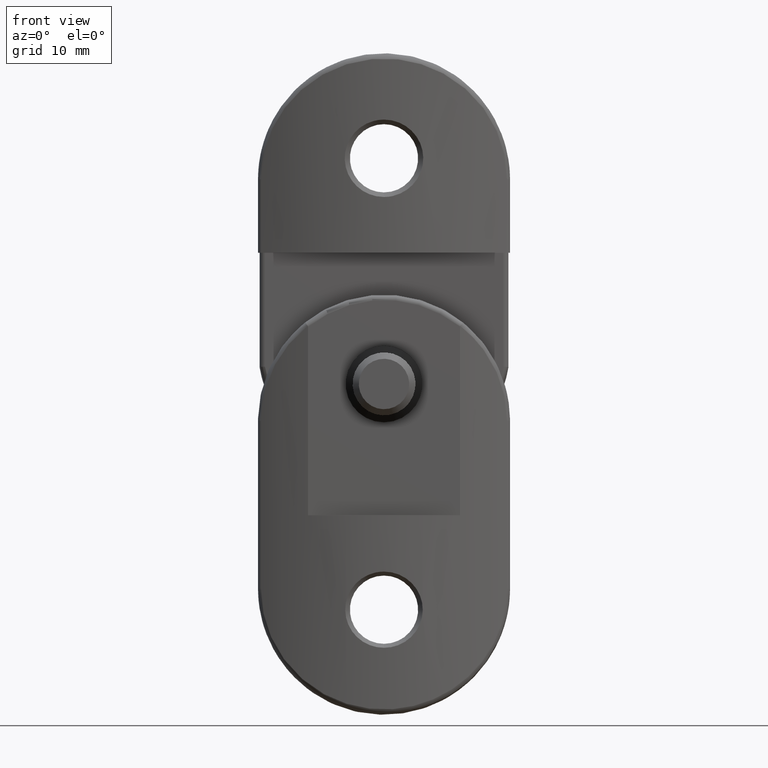
[diagram: clean part render]
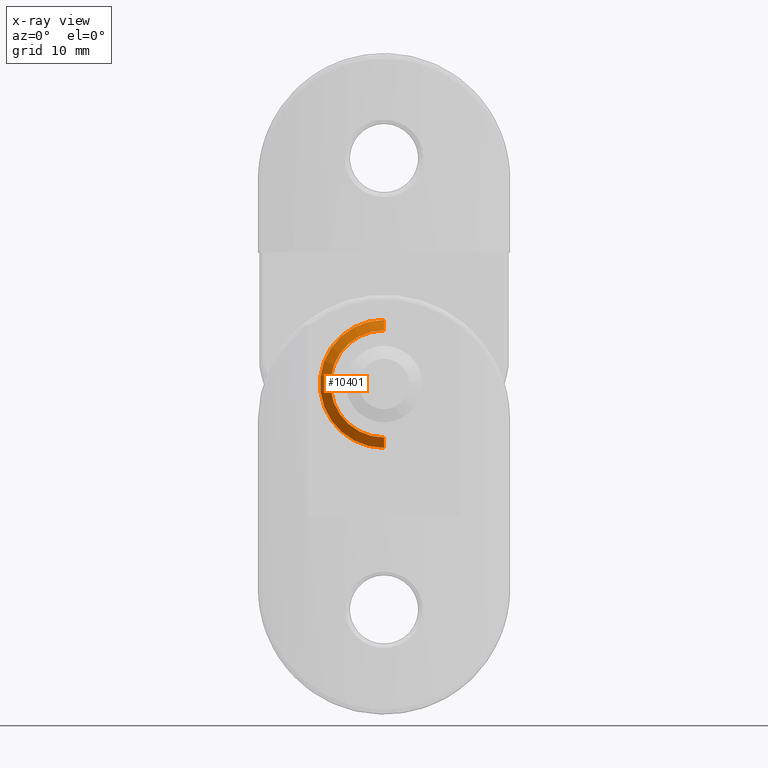
[diagram: x-ray — body ghosted, one internal face saturated and labeled with its STEP entity id]
A machine part, front view, then the same camera in x-ray: the body is ghosted and one INTERNAL B-rep face — a face not visible from any outside direction — is saturated and labeled: STEP entity #10401.
In plain terms, the highlighted conical surface has half-angle 45 deg.
Its self-contained STEP definition (entity closure, byte-faithful):
#2166 = CARTESIAN_POINT ( 'NONE',  ( 0.000000000000000000, 4.499999999999997335, -6.399999999999996803 ) ) ;
#2317 = EDGE_LOOP ( 'NONE', ( #10450, #7035, #4892, #6524 ) ) ;
#2523 = DIRECTION ( 'NONE',  ( -0.000000000000000000, -1.000000000000000000, -0.000000000000000000 ) ) ;
#2890 = VECTOR ( 'NONE', #18457, 1000.000000000000000 ) ;
#3677 = CARTESIAN_POINT ( 'NONE',  ( 3.673940397442058882E-16, 1.399999999999963718, -15.49999999999999467 ) ) ;
#4807 = FACE_OUTER_BOUND ( 'NONE', #2317, .T. ) ;
#4892 = ORIENTED_EDGE ( 'NONE', *, *, #21360, .F. ) ;
#5128 = VERTEX_POINT ( 'NONE', #7158 ) ;
#5330 = AXIS2_PLACEMENT_3D ( 'NONE', #8864, #12287, #15632 ) ;
#6524 = ORIENTED_EDGE ( 'NONE', *, *, #7309, .F. ) ;
#7035 = ORIENTED_EDGE ( 'NONE', *, *, #8385, .T. ) ;
#7158 = CARTESIAN_POINT ( 'NONE',  ( 6.858022075225180524E-16, 3.499999999999996003, -17.60000000000000497 ) ) ;
#7309 = EDGE_CURVE ( 'NONE', #8603, #21990, #16402, .T. ) ;
#8385 = EDGE_CURVE ( 'NONE', #5128, #9609, #18351, .T. ) ;
#8603 = VERTEX_POINT ( 'NONE', #10941 ) ;
#8864 = CARTESIAN_POINT ( 'NONE',  ( 0.000000000000000000, 3.499999999999996003, -12.49999999999999467 ) ) ;
#9151 = VECTOR ( 'NONE', #12248, 1000.000000000000000 ) ;
#9609 = VERTEX_POINT ( 'NONE', #15613 ) ;
#9826 = AXIS2_PLACEMENT_3D ( 'NONE', #20662, #17046, #12073 ) ;
#10401 = ADVANCED_FACE ( 'NONE', ( #4807 ), #17227, .F. ) ;
#10450 = ORIENTED_EDGE ( 'NONE', *, *, #20822, .F. ) ;
#10941 = CARTESIAN_POINT ( 'NONE',  ( 0.000000000000000000, 3.499999999999996003, -7.399999999999987033 ) ) ;
#12073 = DIRECTION ( 'NONE',  ( 0.000000000000000000, 0.000000000000000000, 1.000000000000000000 ) ) ;
#12248 = DIRECTION ( 'NONE',  ( 8.659560562354886020E-17, 0.7071067811865513475, -0.7071067811865436870 ) ) ;
#12287 = DIRECTION ( 'NONE',  ( 0.000000000000000000, 1.000000000000000000, 0.000000000000000000 ) ) ;
#13953 = CIRCLE ( 'NONE', #20630, 6.099999999999999645 ) ;
#14382 = DIRECTION ( 'NONE',  ( 0.000000000000000000, 0.000000000000000000, -1.000000000000000000 ) ) ;
#15613 = CARTESIAN_POINT ( 'NONE',  ( 7.470345474798853307E-16, 4.499999999999997335, -18.59999999999999432 ) ) ;
#15632 = DIRECTION ( 'NONE',  ( 0.000000000000000000, 0.000000000000000000, 1.000000000000000000 ) ) ;
#16402 = LINE ( 'NONE', #19941, #2890 ) ;
#17046 = DIRECTION ( 'NONE',  ( 0.000000000000000000, 1.000000000000000000, 0.000000000000000000 ) ) ;
#17227 = CONICAL_SURFACE ( 'NONE', #9826, 2.999999999999999112, 0.7853981633974428389 ) ;
#17852 = CARTESIAN_POINT ( 'NONE',  ( 0.000000000000000000, 4.499999999999997335, -12.49999999999999467 ) ) ;
#17933 = CIRCLE ( 'NONE', #5330, 5.100000000000008527 ) ;
#18351 = LINE ( 'NONE', #3677, #9151 ) ;
#18457 = DIRECTION ( 'NONE',  ( 0.000000000000000000, 0.7071067811865513475, 0.7071067811865436870 ) ) ;
#19941 = CARTESIAN_POINT ( 'NONE',  ( 0.000000000000000000, 1.399999999999963718, -9.499999999999996447 ) ) ;
#20630 = AXIS2_PLACEMENT_3D ( 'NONE', #17852, #2523, #14382 ) ;
#20662 = CARTESIAN_POINT ( 'NONE',  ( 0.000000000000000000, 1.399999999999963718, -12.49999999999999467 ) ) ;
#20822 = EDGE_CURVE ( 'NONE', #5128, #8603, #17933, .T. ) ;
#21360 = EDGE_CURVE ( 'NONE', #21990, #9609, #13953, .T. ) ;
#21990 = VERTEX_POINT ( 'NONE', #2166 ) ;